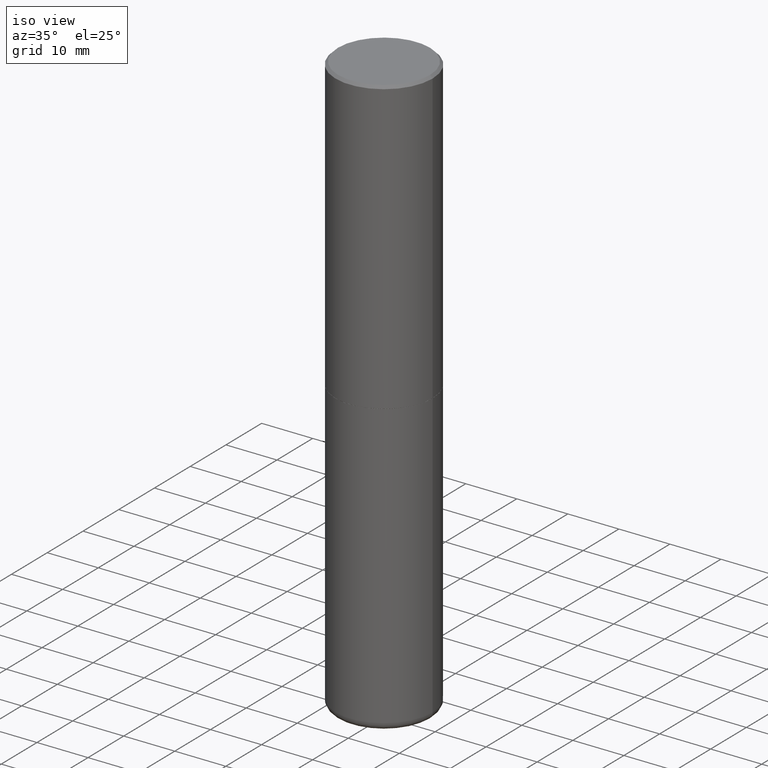
[diagram: clean part render]
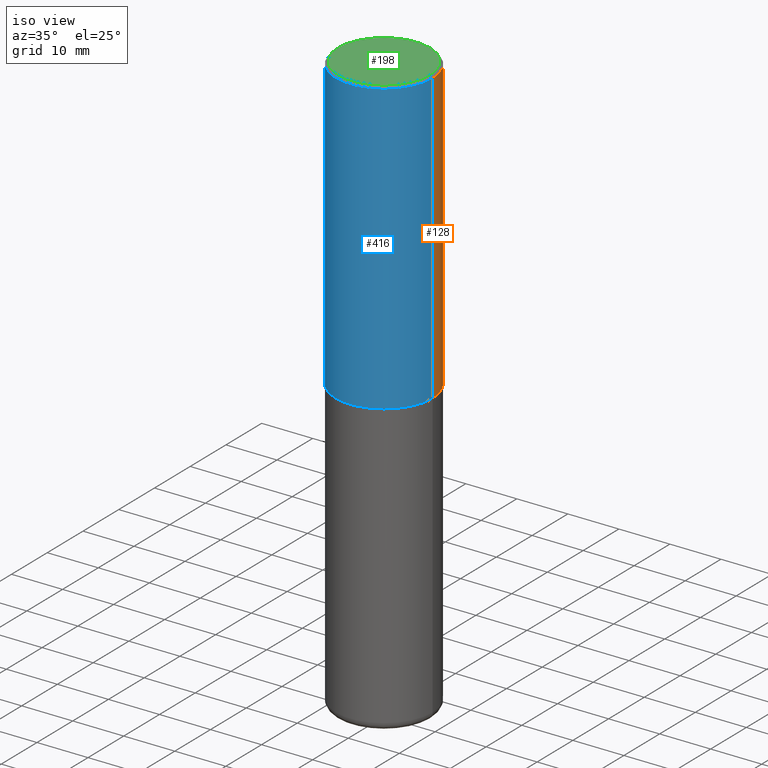
[diagram: same view with three faces highlighted in distinct colors, each labeled with its STEP entity id]
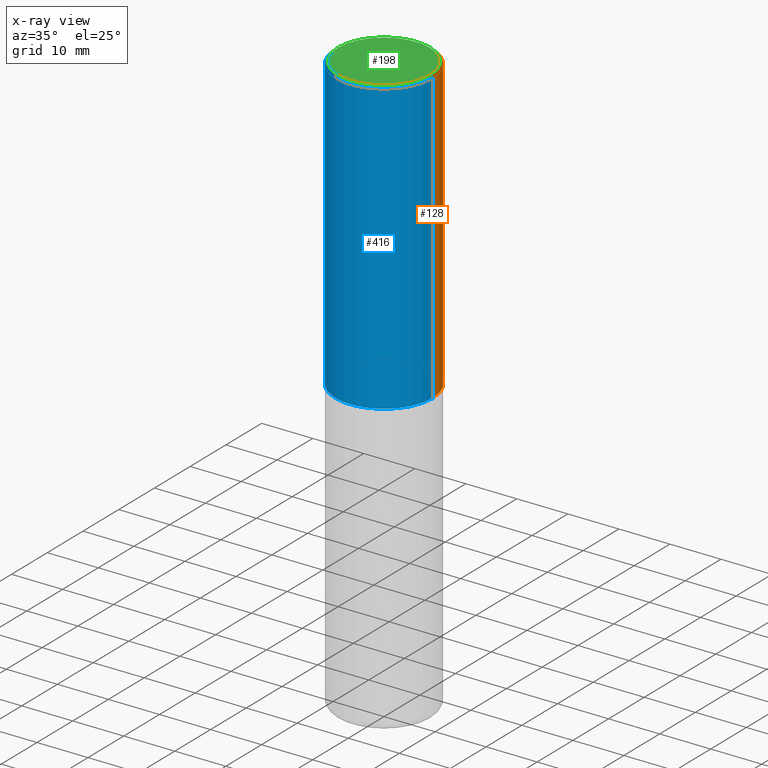
[diagram: x-ray of the same camera — body ghosted, the three highlighted faces saturated]
A machine part, iso view with three faces highlighted in distinct colors.
The next image is the same camera in x-ray (body ghosted, the three faces saturated) — at least one of them is partly hidden behind the body in this view.
Their STEP definitions:

[orange] entity #128 — the highlighted cylindrical surface (partial cylindrical patch) has radius 9.525 mm, axis along (-0, 0, 1).
#2 = VERTEX_POINT ( 'NONE', #268 ) ;
#4 = CARTESIAN_POINT ( 'NONE',  ( 4.890937612370294178E-31, -6.982962677686321191E-17, -0.02000000000000008715 ) ) ;
#5 = EDGE_CURVE ( 'NONE', #2, #329, #295, .T. ) ;
#13 = ORIENTED_EDGE ( 'NONE', *, *, #355, .F. ) ;
#43 = CARTESIAN_POINT ( 'NONE',  ( 0.000000000000000000, 0.000000000000000000, 0.000000000000000000 ) ) ;
#44 = VERTEX_POINT ( 'NONE', #264 ) ;
#50 = CYLINDRICAL_SURFACE ( 'NONE', #66, 0.3750000000000002220 ) ;
#66 = AXIS2_PLACEMENT_3D ( 'NONE', #43, #303, #201 ) ;
#76 = ORIENTED_EDGE ( 'NONE', *, *, #5, .F. ) ;
#93 = AXIS2_PLACEMENT_3D ( 'NONE', #4, #204, #100 ) ;
#100 = DIRECTION ( 'NONE',  ( 1.000000000000000000, -6.982962677686265922E-15, 0.000000000000000000 ) ) ;
#108 = ORIENTED_EDGE ( 'NONE', *, *, #221, .T. ) ;
#114 = CARTESIAN_POINT ( 'NONE',  ( 5.499859345110371740E-29, -7.852341531058233864E-15, -2.249000000000000110 ) ) ;
#122 = VECTOR ( 'NONE', #234, 39.37007874015748143 ) ;
#128 = ADVANCED_FACE ( 'NONE', ( #145 ), #50, .T. ) ;
#138 = CARTESIAN_POINT ( 'NONE',  ( 0.3750000000000002220, -2.618611004132351594E-15, 1.828566290923477043E-29 ) ) ;
#143 = DIRECTION ( 'NONE',  ( -2.445468806185136597E-29, 3.491481338843145583E-15, 1.000000000000000000 ) ) ;
#145 = FACE_OUTER_BOUND ( 'NONE', #177, .T. ) ;
#157 = CIRCLE ( 'NONE', #93, 0.3750000000000001110 ) ;
#164 = AXIS2_PLACEMENT_3D ( 'NONE', #114, #143, #322 ) ;
#165 = CARTESIAN_POINT ( 'NONE',  ( 0.3750000000000001110, -2.642516375941188423E-15, -0.02000000000000008715 ) ) ;
#177 = EDGE_LOOP ( 'NONE', ( #219, #108, #13, #76 ) ) ;
#201 = DIRECTION ( 'NONE',  ( 1.000000000000000000, -6.982962677686266711E-15, 4.876176775795935793E-29 ) ) ;
#204 = DIRECTION ( 'NONE',  ( -2.445468806185136597E-29, 3.491481338843145583E-15, 1.000000000000000000 ) ) ;
#219 = ORIENTED_EDGE ( 'NONE', *, *, #317, .T. ) ;
#221 = EDGE_CURVE ( 'NONE', #390, #44, #402, .T. ) ;
#234 = DIRECTION ( 'NONE',  ( -2.445468806185136877E-29, 3.491481338843145188E-15, 1.000000000000000000 ) ) ;
#264 = CARTESIAN_POINT ( 'NONE',  ( -0.3750000000000001110, 2.548781377355487113E-15, -0.02000000000000008715 ) ) ;
#265 = CARTESIAN_POINT ( 'NONE',  ( -0.3750000000000002776, -1.296550319817170517E-15, -2.249000000000000110 ) ) ;
#266 = CARTESIAN_POINT ( 'NONE',  ( -0.3750000000000002220, 2.664535259100377275E-15, -1.844600658845590719E-29 ) ) ;
#268 = CARTESIAN_POINT ( 'NONE',  ( 0.3750000000000002776, -1.047095253519058704E-14, -2.249000000000000110 ) ) ;
#295 = LINE ( 'NONE', #138, #413 ) ;
#303 = DIRECTION ( 'NONE',  ( -2.445468806185136597E-29, 3.491481338843145583E-15, 1.000000000000000000 ) ) ;
#317 = EDGE_CURVE ( 'NONE', #2, #390, #344, .T. ) ;
#322 = DIRECTION ( 'NONE',  ( 1.000000000000000000, -6.982962677686267499E-15, 0.000000000000000000 ) ) ;
#329 = VERTEX_POINT ( 'NONE', #165 ) ;
#344 = CIRCLE ( 'NONE', #164, 0.3750000000000002776 ) ;
#355 = EDGE_CURVE ( 'NONE', #329, #44, #157, .T. ) ;
#390 = VERTEX_POINT ( 'NONE', #265 ) ;
#402 = LINE ( 'NONE', #266, #122 ) ;
#403 = DIRECTION ( 'NONE',  ( -2.445468806185136877E-29, 3.491481338843145188E-15, 1.000000000000000000 ) ) ;
#413 = VECTOR ( 'NONE', #403, 39.37007874015748143 ) ;

[blue] entity #416 — the highlighted cylindrical surface (partial cylindrical patch) has radius 9.525 mm, axis along (-0, 0, 1).
#2 = VERTEX_POINT ( 'NONE', #268 ) ;
#5 = EDGE_CURVE ( 'NONE', #2, #329, #295, .T. ) ;
#42 = EDGE_LOOP ( 'NONE', ( #105, #262, #267, #293 ) ) ;
#44 = VERTEX_POINT ( 'NONE', #264 ) ;
#101 = CIRCLE ( 'NONE', #243, 0.3750000000000001110 ) ;
#105 = ORIENTED_EDGE ( 'NONE', *, *, #221, .F. ) ;
#122 = VECTOR ( 'NONE', #234, 39.37007874015748143 ) ;
#138 = CARTESIAN_POINT ( 'NONE',  ( 0.3750000000000002220, -2.618611004132351594E-15, 1.828566290923477043E-29 ) ) ;
#147 = DIRECTION ( 'NONE',  ( -2.445468806185136597E-29, 3.491481338843145583E-15, 1.000000000000000000 ) ) ;
#156 = AXIS2_PLACEMENT_3D ( 'NONE', #401, #147, #283 ) ;
#162 = EDGE_CURVE ( 'NONE', #390, #2, #387, .T. ) ;
#165 = CARTESIAN_POINT ( 'NONE',  ( 0.3750000000000001110, -2.642516375941188423E-15, -0.02000000000000008715 ) ) ;
#175 = CYLINDRICAL_SURFACE ( 'NONE', #156, 0.3750000000000002220 ) ;
#221 = EDGE_CURVE ( 'NONE', #390, #44, #402, .T. ) ;
#234 = DIRECTION ( 'NONE',  ( -2.445468806185136877E-29, 3.491481338843145188E-15, 1.000000000000000000 ) ) ;
#243 = AXIS2_PLACEMENT_3D ( 'NONE', #247, #378, #352 ) ;
#247 = CARTESIAN_POINT ( 'NONE',  ( 4.890937612370294178E-31, -6.982962677686321191E-17, -0.02000000000000008715 ) ) ;
#261 = CARTESIAN_POINT ( 'NONE',  ( 5.499859345110371740E-29, -7.852341531058233864E-15, -2.249000000000000110 ) ) ;
#262 = ORIENTED_EDGE ( 'NONE', *, *, #162, .T. ) ;
#264 = CARTESIAN_POINT ( 'NONE',  ( -0.3750000000000001110, 2.548781377355487113E-15, -0.02000000000000008715 ) ) ;
#265 = CARTESIAN_POINT ( 'NONE',  ( -0.3750000000000002776, -1.296550319817170517E-15, -2.249000000000000110 ) ) ;
#266 = CARTESIAN_POINT ( 'NONE',  ( -0.3750000000000002220, 2.664535259100377275E-15, -1.844600658845590719E-29 ) ) ;
#267 = ORIENTED_EDGE ( 'NONE', *, *, #5, .T. ) ;
#268 = CARTESIAN_POINT ( 'NONE',  ( 0.3750000000000002776, -1.047095253519058704E-14, -2.249000000000000110 ) ) ;
#283 = DIRECTION ( 'NONE',  ( 1.000000000000000000, -6.982962677686266711E-15, 4.876176775795935793E-29 ) ) ;
#293 = ORIENTED_EDGE ( 'NONE', *, *, #304, .F. ) ;
#295 = LINE ( 'NONE', #138, #413 ) ;
#304 = EDGE_CURVE ( 'NONE', #44, #329, #101, .T. ) ;
#329 = VERTEX_POINT ( 'NONE', #165 ) ;
#332 = DIRECTION ( 'NONE',  ( 1.000000000000000000, -6.982962677686267499E-15, 0.000000000000000000 ) ) ;
#334 = FACE_OUTER_BOUND ( 'NONE', #42, .T. ) ;
#345 = AXIS2_PLACEMENT_3D ( 'NONE', #261, #393, #332 ) ;
#352 = DIRECTION ( 'NONE',  ( 1.000000000000000000, -6.982962677686265922E-15, 0.000000000000000000 ) ) ;
#378 = DIRECTION ( 'NONE',  ( -2.445468806185136597E-29, 3.491481338843145583E-15, 1.000000000000000000 ) ) ;
#387 = CIRCLE ( 'NONE', #345, 0.3750000000000002776 ) ;
#390 = VERTEX_POINT ( 'NONE', #265 ) ;
#393 = DIRECTION ( 'NONE',  ( -2.445468806185136597E-29, 3.491481338843145583E-15, 1.000000000000000000 ) ) ;
#401 = CARTESIAN_POINT ( 'NONE',  ( 0.000000000000000000, 0.000000000000000000, 0.000000000000000000 ) ) ;
#402 = LINE ( 'NONE', #266, #122 ) ;
#403 = DIRECTION ( 'NONE',  ( -2.445468806185136877E-29, 3.491481338843145188E-15, 1.000000000000000000 ) ) ;
#413 = VECTOR ( 'NONE', #403, 39.37007874015748143 ) ;
#416 = ADVANCED_FACE ( 'NONE', ( #334 ), #175, .T. ) ;

[green] entity #198 — the highlighted planar face has unit normal (0, -0, -1).
#38 = CARTESIAN_POINT ( 'NONE',  ( 2.478951750578624209E-15, 0.3549999999999999822, -1.207462031613563440E-15 ) ) ;
#51 = AXIS2_PLACEMENT_3D ( 'NONE', #310, #171, #297 ) ;
#84 = AXIS2_PLACEMENT_3D ( 'NONE', #38, #166, #306 ) ;
#119 = AXIS2_PLACEMENT_3D ( 'NONE', #139, #360, #127 ) ;
#127 = DIRECTION ( 'NONE',  ( 1.000000000000000000, -6.982962677686265922E-15, 4.876231632511988183E-29 ) ) ;
#139 = CARTESIAN_POINT ( 'NONE',  ( -1.565777121502829671E-45, 2.235514755570671047E-31, 6.402768735150616610E-17 ) ) ;
#140 = PLANE ( 'NONE',  #84 ) ;
#166 = DIRECTION ( 'NONE',  ( 2.438088387897960049E-29, -3.491481338843145188E-15, -1.000000000000000000 ) ) ;
#171 = DIRECTION ( 'NONE',  ( -2.445468806185136597E-29, 3.491481338843145583E-15, 1.000000000000000000 ) ) ;
#173 = VERTEX_POINT ( 'NONE', #290 ) ;
#198 = ADVANCED_FACE ( 'NONE', ( #302 ), #140, .F. ) ;
#200 = CIRCLE ( 'NONE', #119, 0.3549999999999999822 ) ;
#225 = VERTEX_POINT ( 'NONE', #331 ) ;
#248 = EDGE_CURVE ( 'NONE', #173, #225, #316, .T. ) ;
#272 = EDGE_LOOP ( 'NONE', ( #321, #364 ) ) ;
#290 = CARTESIAN_POINT ( 'NONE',  ( -0.3549999999999999822, 2.513866563967055464E-15, 6.402768735148871255E-17 ) ) ;
#297 = DIRECTION ( 'NONE',  ( 1.000000000000000000, -6.982962677686265922E-15, 4.876231632511988183E-29 ) ) ;
#302 = FACE_OUTER_BOUND ( 'NONE', #272, .T. ) ;
#306 = DIRECTION ( 'NONE',  ( -1.000000000000000000, 6.982962677686265922E-15, -4.876176775795935793E-29 ) ) ;
#310 = CARTESIAN_POINT ( 'NONE',  ( -1.565777121502829671E-45, 2.235514755570671047E-31, 6.402768735150616610E-17 ) ) ;
#316 = CIRCLE ( 'NONE', #51, 0.3549999999999999822 ) ;
#321 = ORIENTED_EDGE ( 'NONE', *, *, #248, .T. ) ;
#331 = CARTESIAN_POINT ( 'NONE',  ( 0.3549999999999999822, -2.538996582575041048E-15, 6.402768735152371826E-17 ) ) ;
#360 = DIRECTION ( 'NONE',  ( -2.445468806185136597E-29, 3.491481338843145583E-15, 1.000000000000000000 ) ) ;
#364 = ORIENTED_EDGE ( 'NONE', *, *, #407, .T. ) ;
#407 = EDGE_CURVE ( 'NONE', #225, #173, #200, .T. ) ;